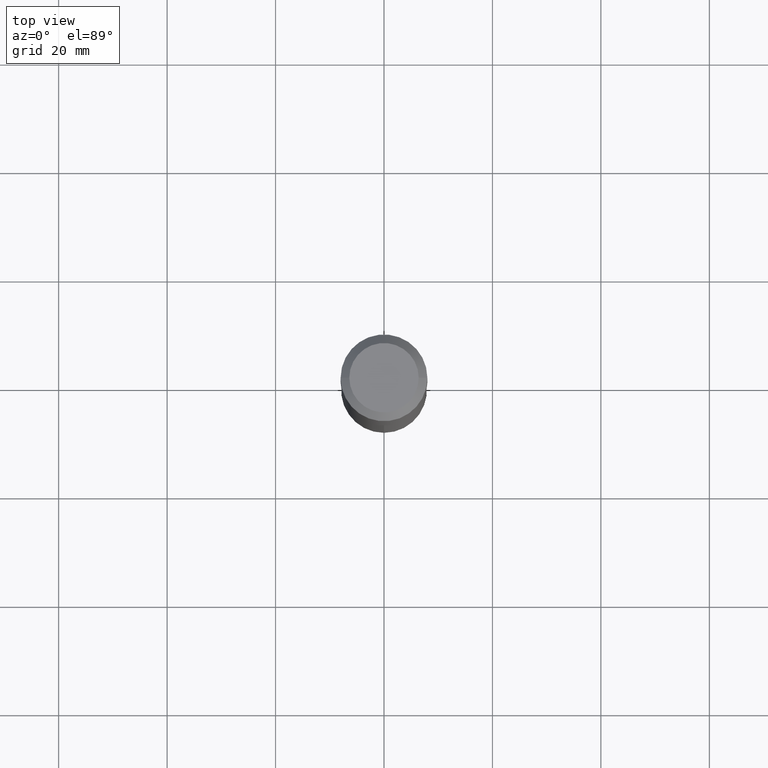
[diagram: clean part render]
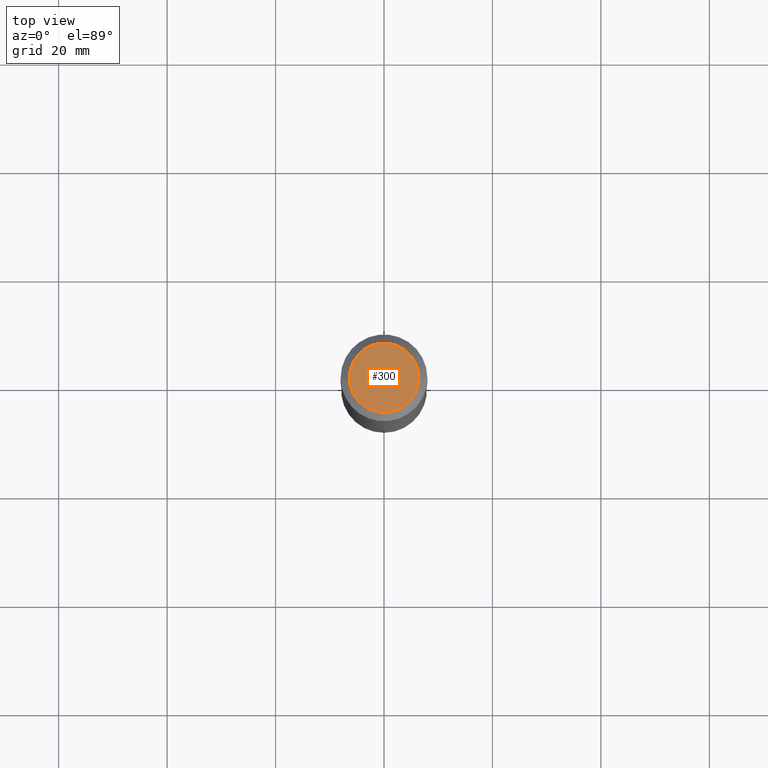
[diagram: same view with one face highlighted and labeled with its STEP entity id]
A machine part, top view. The second image highlights one B-rep face of the part: STEP entity #300.
In plain terms, the highlighted planar face has unit normal (0, -0, -1).
Its self-contained STEP definition (entity closure, byte-faithful):
#3 = CARTESIAN_POINT ( 'NONE',  ( 0.2519600000000000173, -2.054606664725195058E-15, 3.855188123729206640E-18 ) ) ;
#22 = EDGE_CURVE ( 'NONE', #470, #327, #127, .T. ) ;
#27 = ORIENTED_EDGE ( 'NONE', *, *, #68, .T. ) ;
#53 = CARTESIAN_POINT ( 'NONE',  ( -9.427742298522569579E-47, 1.346031739168368629E-32, 3.855188123715871501E-18 ) ) ;
#68 = EDGE_CURVE ( 'NONE', #327, #470, #212, .T. ) ;
#75 = DIRECTION ( 'NONE',  ( 2.438088387897960049E-29, -3.491481338843145188E-15, -1.000000000000000000 ) ) ;
#107 = DIRECTION ( 'NONE',  ( -2.445468806185136597E-29, 3.491481338843145583E-15, 1.000000000000000000 ) ) ;
#113 = FACE_OUTER_BOUND ( 'NONE', #166, .T. ) ;
#127 = CIRCLE ( 'NONE', #331, 0.2519600000000000173 ) ;
#139 = DIRECTION ( 'NONE',  ( 1.000000000000000000, -6.982962677686266711E-15, 4.876115136096691995E-29 ) ) ;
#166 = EDGE_LOOP ( 'NONE', ( #441, #27 ) ) ;
#212 = CIRCLE ( 'NONE', #402, 0.2519600000000000173 ) ;
#236 = CARTESIAN_POINT ( 'NONE',  ( -4.713871149261284790E-47, 6.730158695841843144E-33, 1.927594061857935750E-18 ) ) ;
#252 = CARTESIAN_POINT ( 'NONE',  ( -9.427742298522569579E-47, 1.346031739168368629E-32, 3.855188123715871501E-18 ) ) ;
#270 = CARTESIAN_POINT ( 'NONE',  ( -0.2519600000000000173, 1.869391481036695286E-15, 3.855188123703182704E-18 ) ) ;
#300 = ADVANCED_FACE ( 'NONE', ( #113 ), #412, .F. ) ;
#304 = DIRECTION ( 'NONE',  ( -1.000000000000000000, 6.982962677686265922E-15, -4.876176775795935793E-29 ) ) ;
#327 = VERTEX_POINT ( 'NONE', #3 ) ;
#331 = AXIS2_PLACEMENT_3D ( 'NONE', #252, #107, #368 ) ;
#332 = AXIS2_PLACEMENT_3D ( 'NONE', #236, #75, #304 ) ;
#368 = DIRECTION ( 'NONE',  ( 1.000000000000000000, -6.982962677686266711E-15, 4.876115136096691995E-29 ) ) ;
#397 = DIRECTION ( 'NONE',  ( -2.445468806185136597E-29, 3.491481338843145583E-15, 1.000000000000000000 ) ) ;
#402 = AXIS2_PLACEMENT_3D ( 'NONE', #53, #397, #139 ) ;
#412 = PLANE ( 'NONE',  #332 ) ;
#441 = ORIENTED_EDGE ( 'NONE', *, *, #22, .T. ) ;
#470 = VERTEX_POINT ( 'NONE', #270 ) ;